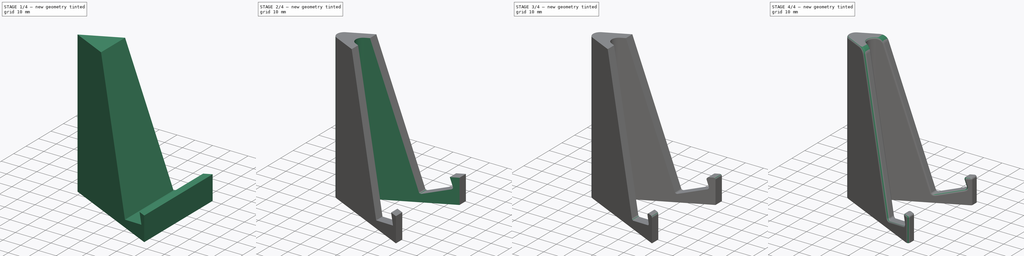
[diagram: build sequence overview — one tinted view per stage of 4, left to right]
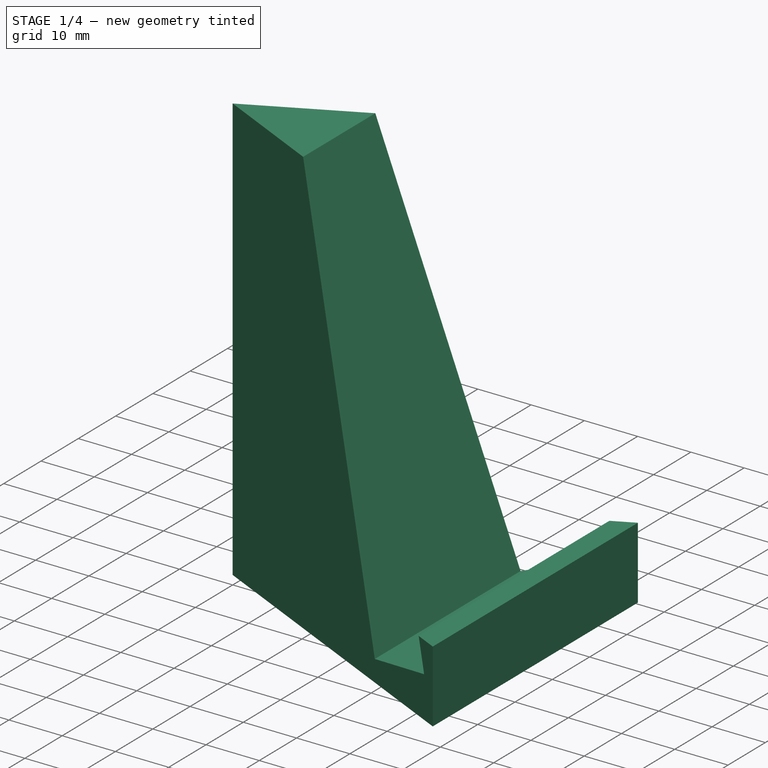
[diagram: stage 1 of 4 — iso view after this stage's code; geometry added in this stage tinted green]
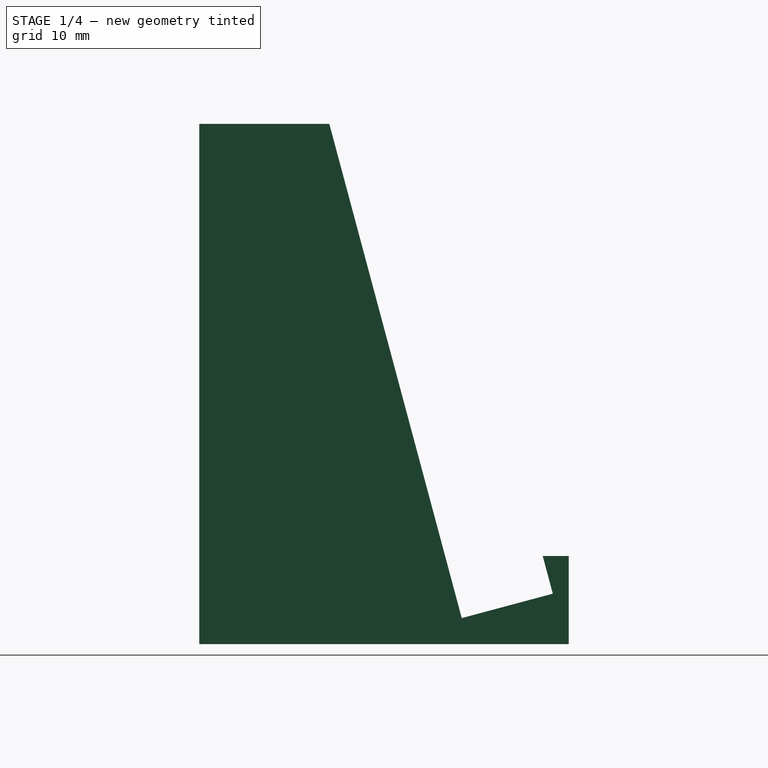
[diagram: stage 1 of 4 — front view after this stage's code; geometry added in this stage tinted green]
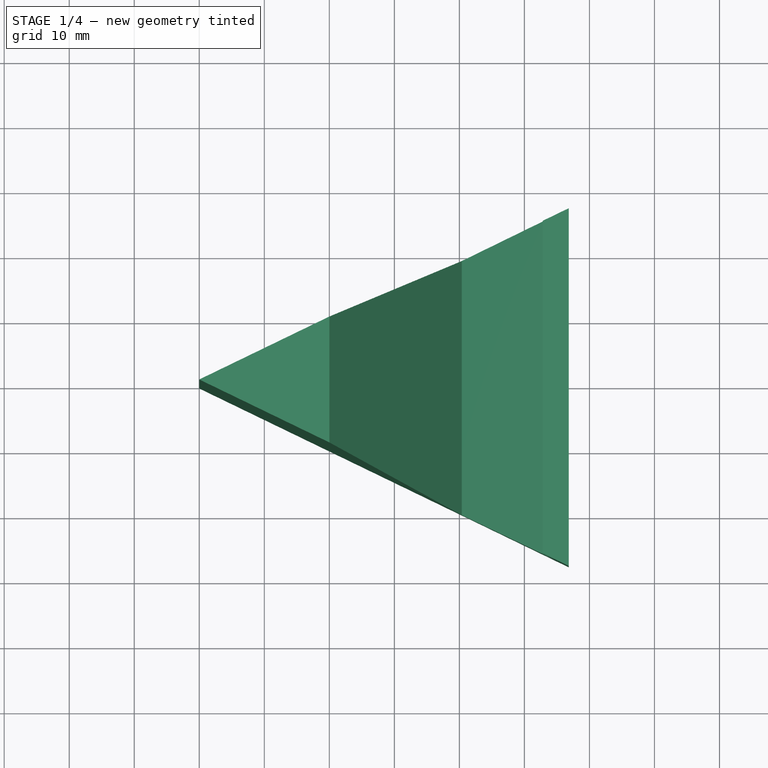
[diagram: stage 1 of 4 — top view after this stage's code; geometry added in this stage tinted green]
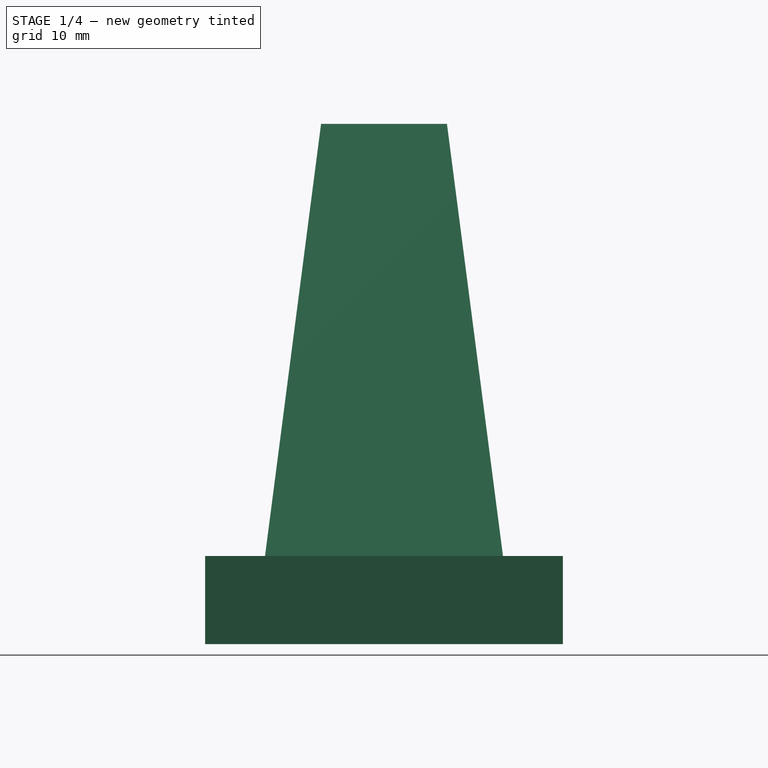
[diagram: stage 1 of 4 — right view after this stage's code; geometry added in this stage tinted green]
FCSTD DOCUMENT  (FreeCAD 0.19R)
Label: pocket265_stand
License: All rights reserved
LicenseURL: http://en.wikipedia.org/wiki/All_rights_reserved
objects: PartDesign::Fillet×7, Sketcher::SketchObject×3, PartDesign::Pocket×2, PartDesign::Pad×1, PartDesign::Mirrored×1, PartDesign::Body×1
note: 25 computed .brp shape members not serialized (recipe doc carries the construction recipe); baked Part::Feature solids carry a one-line shape summary decoded from their .brp

FEATURE [Sketcher::SketchObject] Sketch
  FullyConstrained = true
  MapMode = 5
  Placement = pos=(0,0,0) rot=(1,0,0;1.5708rad)
  Support = -> [XZ_Plane]
  sketch-geometry (8):
    g0: LineSegment StartX=36.8171 StartY=0 StartZ=0 EndX=-20 EndY=0 EndZ=0
    g1: LineSegment StartX=-20 StartY=0 StartZ=0 EndX=-20 EndY=80 EndZ=0
    g2: LineSegment StartX=-20 StartY=80 StartZ=0 EndX=0 EndY=80 EndZ=0
    g3: LineSegment StartX=0 StartY=80 StartZ=0 EndX=20.3641 EndY=4 EndZ=0
    g4: LineSegment StartX=36.8171 StartY=13.5484 StartZ=0 EndX=36.8171 EndY=0 EndZ=0
    g5: LineSegment StartX=20.3641 StartY=4 StartZ=0 EndX=34.3701 EndY=7.75288 EndZ=0
    g6: LineSegment StartX=34.3701 StartY=7.75288 StartZ=0 EndX=32.8171 EndY=13.5484 EndZ=0
    g7: LineSegment StartX=32.8171 StartY=13.5484 StartZ=0 EndX=36.8171 EndY=13.5484 EndZ=0
  constraints (24):
    c: PointOnObject(g0,g-1)
    c: PointOnObject(g0,g-1)
    c: Coincident(g0,g1)
    c: Vertical(g1)
    c: Coincident(g1,g2)
    c: Horizontal(g2)
    c: Coincident(g2,g3)
    c: Coincident(g4,g0)
    c: Vertical(g4)
    c: PointOnObject(g2,g-2)
    c: Coincident(g3,g5)
    c: Coincident(g5,g6)
    c: Coincident(g6,g7)
    c: Horizontal(g7)
    c: Coincident(g4,g7)
    c: Perpendicular(g5,g3)
    c: Perpendicular(g5,g6)
    c: Distance(g6) = 6
    c: Distance(g5) = 14.5
    c: DistanceX(g6,g4) = 4
    c: DistanceY(g-1,g3) = 4
    c: DistanceX(g2,g2) = 20
    c: Angle(g-2,g3) = 0.261799
    c: DistanceY(g1,g1) = 80
FEATURE [PartDesign::Pad] Pad
  Direction = (1,1,1)
  Length = 55
  Length2 = 100
  Midplane = true
  Placement = pos=(0,0,0) rot=(1,0,0;1.5708rad)
  Profile = -> Sketch
  Type = 0
FEATURE [Sketcher::SketchObject] Sketch001
  ExternalGeometry = -> [Pad]
  FullyConstrained = false
  MapMode = 5
  Placement = pos=(0,0,0) rot=(1,0,0;3.14159rad)
  Support = -> [Pad]
  sketch-geometry (5):
    g0: LineSegment StartX=36.8171 StartY=27.5 StartZ=0 EndX=-20 EndY=0 EndZ=0
    g1: LineSegment StartX=36.8171 StartY=27.5 StartZ=0 EndX=42.3292 EndY=41.2553 EndZ=0
    g2: LineSegment StartX=42.3292 StartY=41.2553 StartZ=0 EndX=-38.6715 EndY=41.2553 EndZ=0
    g3: LineSegment StartX=-38.6715 StartY=41.2553 StartZ=0 EndX=-33.5333 EndY=5.42531 EndZ=0
    g4: LineSegment StartX=-33.5333 StartY=5.42531 StartZ=0 EndX=-20 EndY=0 EndZ=0
  constraints (9):
    c: Coincident(g0,g-3)
    c: PointOnObject(g0,g-1)
    c: PointOnObject(g0,g-4)
    c: Coincident(g0,g1)
    c: Coincident(g1,g2)
    c: Horizontal(g2)
    c: Coincident(g2,g3)
    c: Coincident(g3,g4)
    c: Coincident(g4,g0)
FEATURE [PartDesign::Pocket] Pocket
  BaseFeature = -> Pad
  Length = 5
  Length2 = 100
  Placement = pos=(0,0,0) rot=(1,0,0;1.5708rad)
  Profile = -> Sketch001
  Type = 1
FEATURE [PartDesign::Mirrored] Mirrored
  BaseFeature = -> Pocket
  MirrorPlane = -> Sketch001 [H_Axis]
  Originals = -> [Pocket]
  Placement = pos=(0,0,0) rot=(1,0,0;1.5708rad)
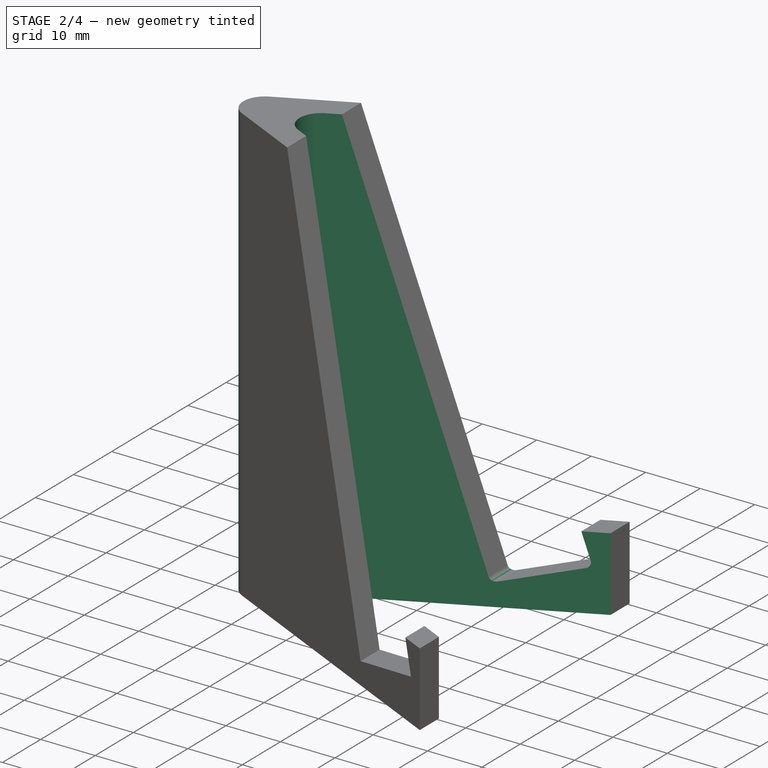
[diagram: stage 2 of 4 — iso view after this stage's code; geometry added in this stage tinted green]
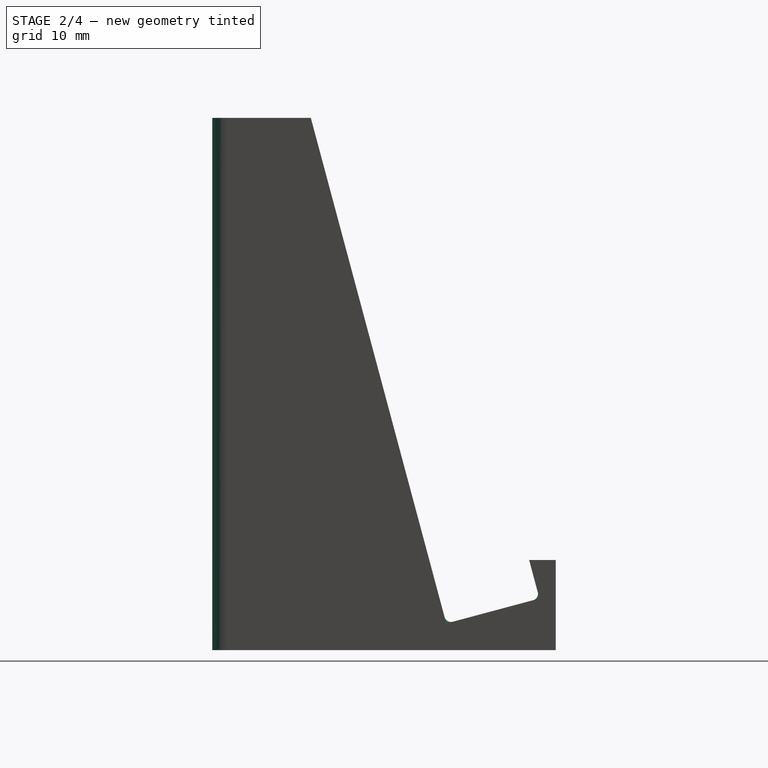
[diagram: stage 2 of 4 — front view after this stage's code; geometry added in this stage tinted green]
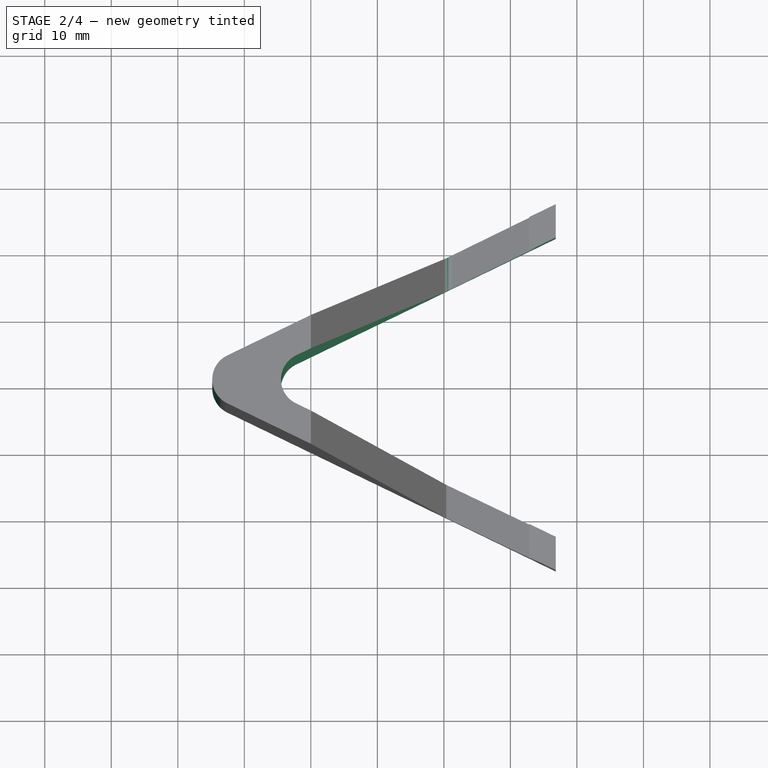
[diagram: stage 2 of 4 — top view after this stage's code; geometry added in this stage tinted green]
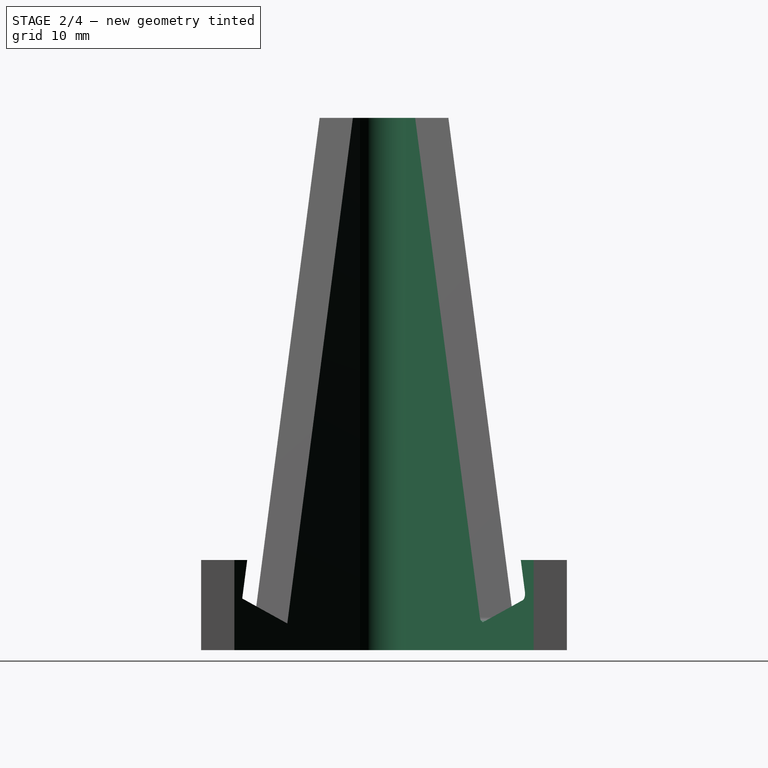
[diagram: stage 2 of 4 — right view after this stage's code; geometry added in this stage tinted green]
FEATURE [Sketcher::SketchObject] Sketch002
  ExternalGeometry = -> [Mirrored]
  FullyConstrained = true
  MapMode = 5
  Placement = pos=(0,0,0) rot=(1,0,0;3.14159rad)
  Support = -> [Mirrored]
  sketch-geometry (3):
    g0: LineSegment StartX=36.8171 StartY=22.5 StartZ=0 EndX=-9.66961 EndY=0 EndZ=0
    g1: LineSegment StartX=-9.66961 StartY=0 StartZ=0 EndX=36.8171 EndY=-22.5 EndZ=0
    g2: LineSegment StartX=36.8171 StartY=-22.5 StartZ=0 EndX=36.8171 EndY=22.5 EndZ=0
  constraints (8):
    c: PointOnObject(g0,g-3)
    c: PointOnObject(g0,g-1)
    c: Coincident(g0,g1)
    c: Coincident(g1,g2)
    c: Coincident(g2,g0)
    c: Symmetric(g0,g1,g-1)
    c: Parallel(g0,g-4)
    c: DistanceY(g0,g-4) = 5
FEATURE [PartDesign::Pocket] Pocket001
  BaseFeature = -> Mirrored
  Length = 5
  Length2 = 100
  Placement = pos=(0,0,0) rot=(1,0,0;1.5708rad)
  Profile = -> Sketch002
  Type = 1
FEATURE [PartDesign::Fillet] Fillet
  Base = -> Pocket001 [Edge22,Edge8]
  BaseFeature = -> Pocket001
  Placement = pos=(0,0,0) rot=(1,0,0;1.5708rad)
  Radius = 4
  SupportTransform = false
FEATURE [PartDesign::Fillet] Fillet001
  Base = -> Fillet [Edge44,Edge45]
  BaseFeature = -> Fillet
  Placement = pos=(0,0,0) rot=(1,0,0;1.5708rad)
  Radius = 1
  SupportTransform = false
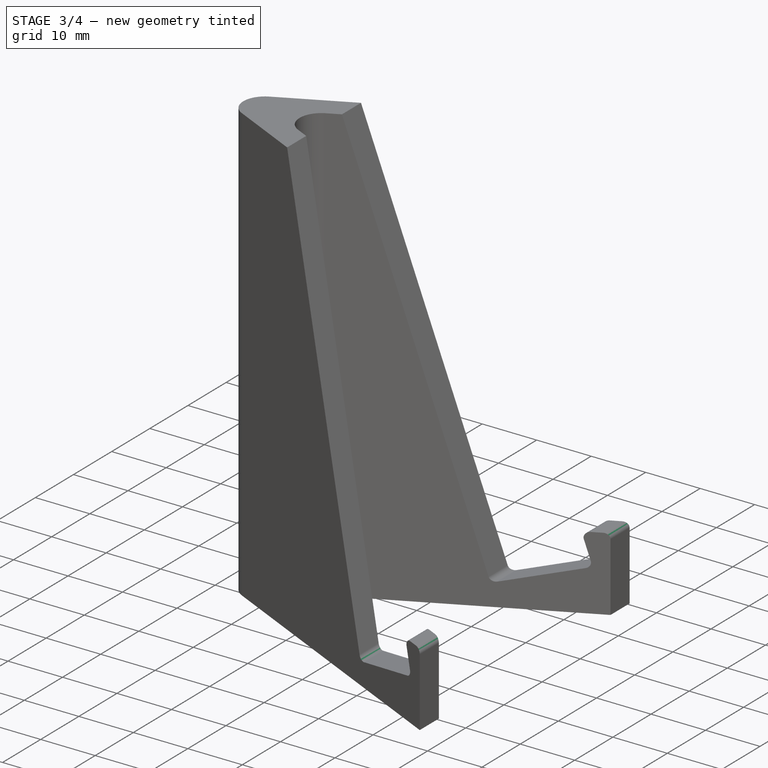
[diagram: stage 3 of 4 — iso view after this stage's code; geometry added in this stage tinted green]
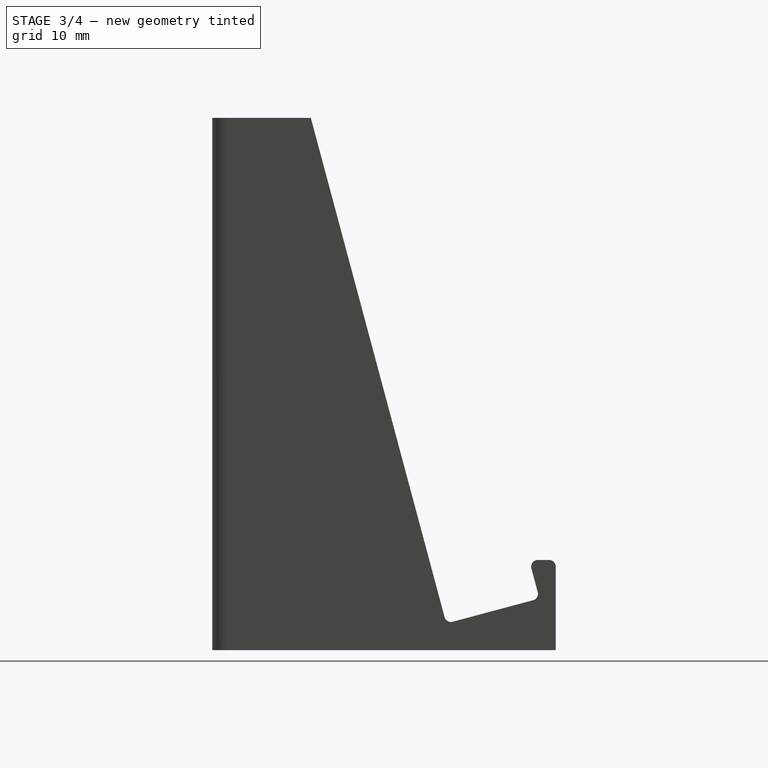
[diagram: stage 3 of 4 — front view after this stage's code; geometry added in this stage tinted green]
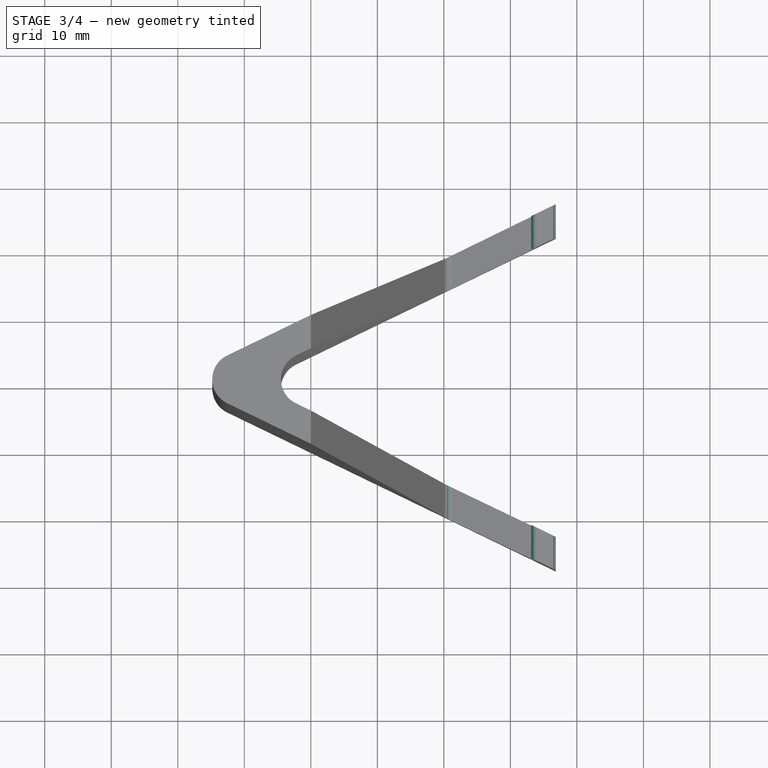
[diagram: stage 3 of 4 — top view after this stage's code; geometry added in this stage tinted green]
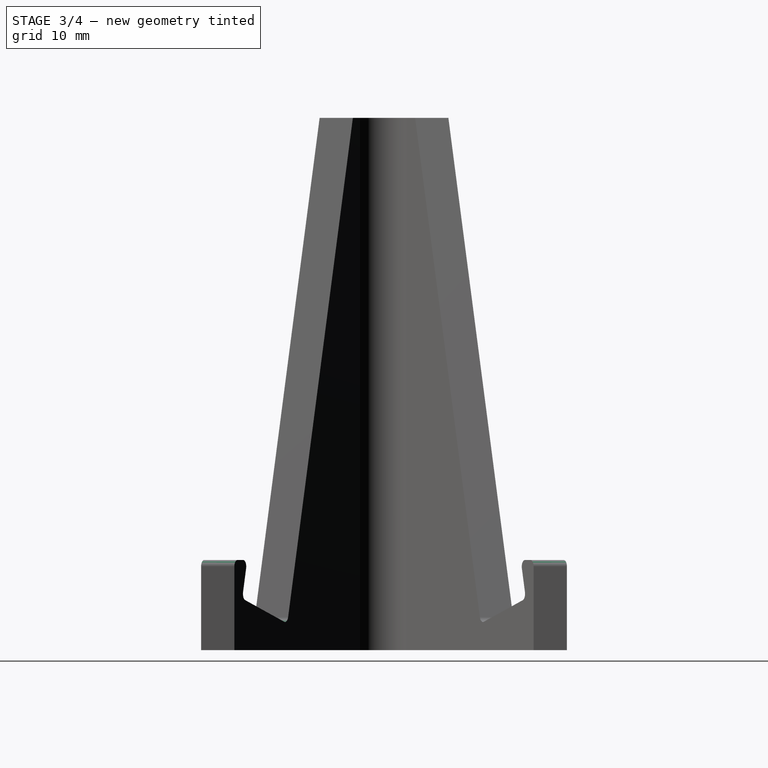
[diagram: stage 3 of 4 — right view after this stage's code; geometry added in this stage tinted green]
FEATURE [PartDesign::Fillet] Fillet002
  Base = -> Fillet001 [Edge46,Edge54]
  BaseFeature = -> Fillet001
  Placement = pos=(0,0,0) rot=(1,0,0;1.5708rad)
  Radius = 1
  SupportTransform = false
FEATURE [PartDesign::Fillet] Fillet003
  Base = -> Fillet002 [Edge35,Edge60,Edge56,Edge37]
  BaseFeature = -> Fillet002
  Placement = pos=(0,0,0) rot=(1,0,0;1.5708rad)
  Radius = 1
  SupportTransform = false
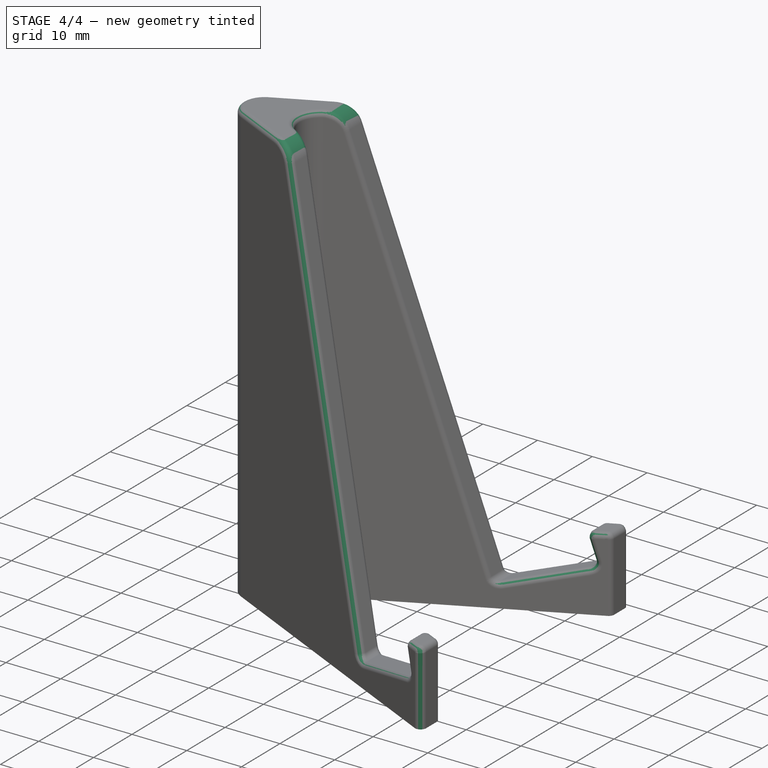
[diagram: stage 4 of 4 — iso view after this stage's code; geometry added in this stage tinted green]
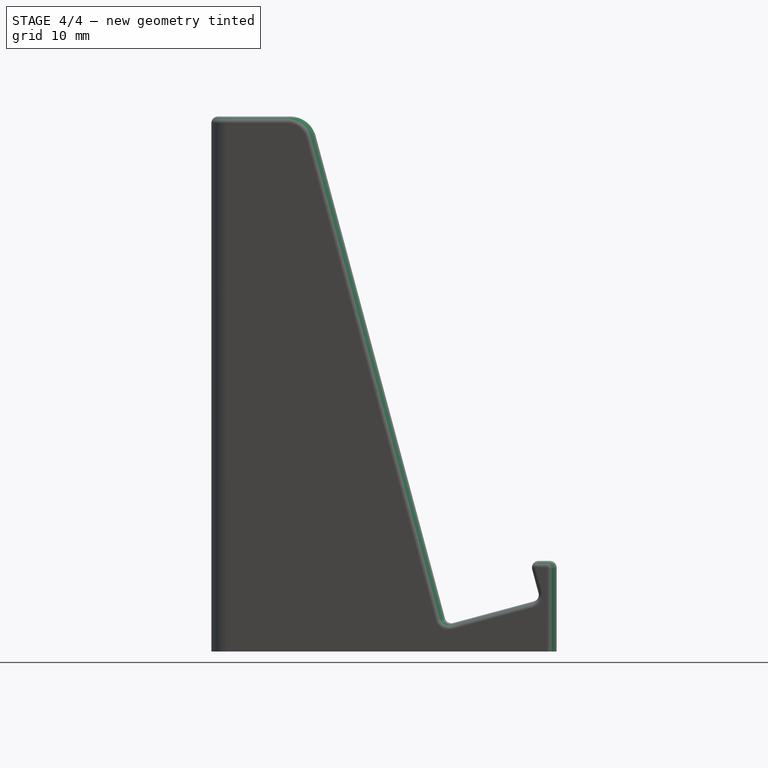
[diagram: stage 4 of 4 — front view after this stage's code; geometry added in this stage tinted green]
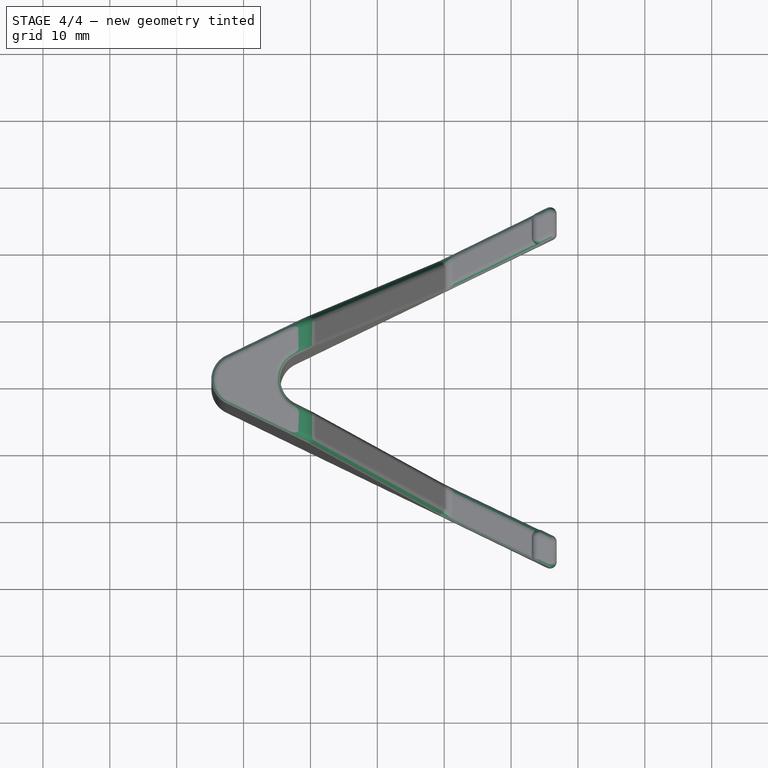
[diagram: stage 4 of 4 — top view after this stage's code; geometry added in this stage tinted green]
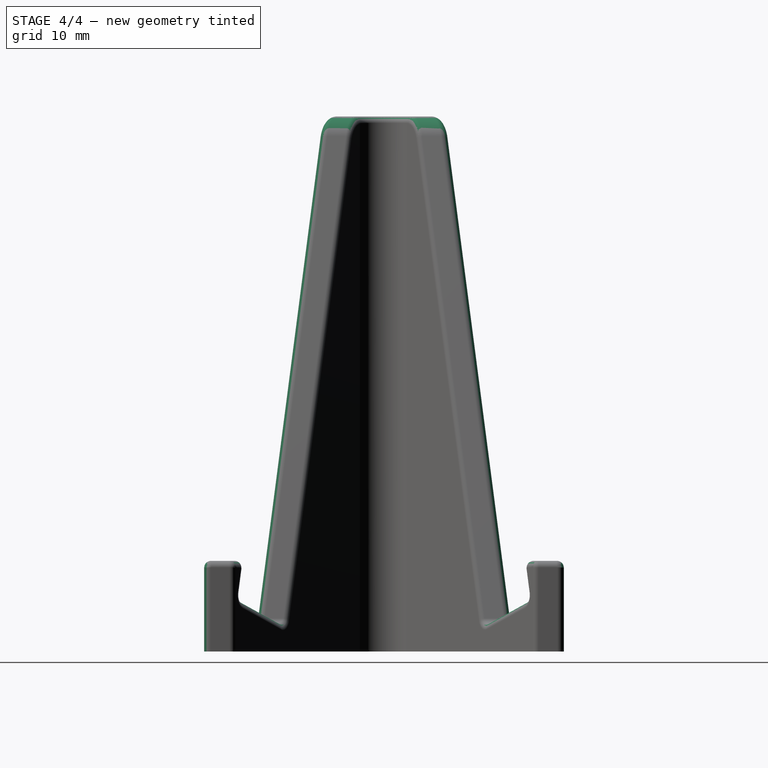
[diagram: stage 4 of 4 — right view after this stage's code; geometry added in this stage tinted green]
FEATURE [PartDesign::Fillet] Fillet004
  Base = -> Fillet003 [Edge40,Edge31]
  BaseFeature = -> Fillet003
  Placement = pos=(0,0,0) rot=(1,0,0;1.5708rad)
  Radius = 4
  SupportTransform = false
FEATURE [PartDesign::Fillet] Fillet005
  Base = -> Fillet004 [Edge24,Edge2,Edge51]
  BaseFeature = -> Fillet004
  Placement = pos=(0,0,0) rot=(1,0,0;1.5708rad)
  Radius = 1
  SupportTransform = false
FEATURE [PartDesign::Fillet] Fillet006
  Base = -> Fillet005 [Edge74]
  BaseFeature = -> Fillet005
  Placement = pos=(0,0,0) rot=(1,0,0;1.5708rad)
  Radius = 1
  SupportTransform = false
FEATURE [PartDesign::Body] Body
  Group = -> [Sketch,Pad,Sketch001,Pocket,Mirrored,Sketch002,Pocket001,Fillet,Fillet001,Fillet002,Fillet003,Fillet004,Fillet005,Fillet006]
  Origin = -> Origin
  Tip = -> Fillet006
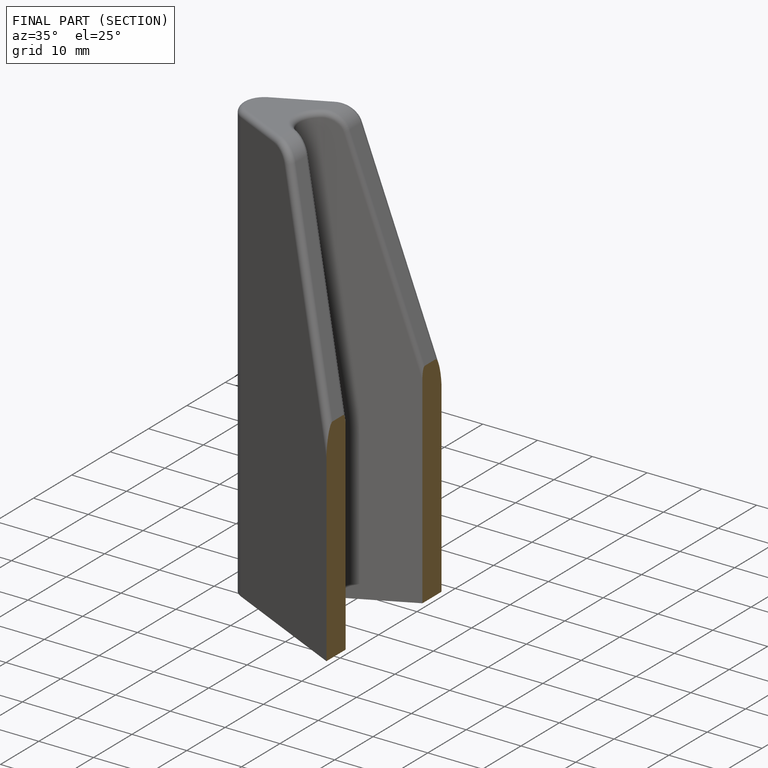
[diagram: finished part — half-section view (interior)]
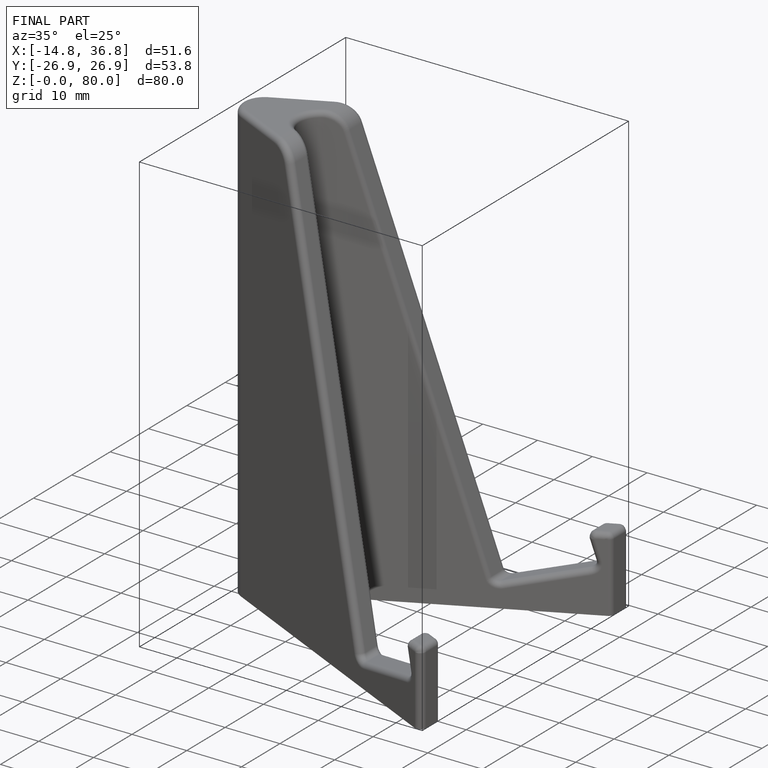
[diagram: finished part — iso view with bounding-box wireframe]
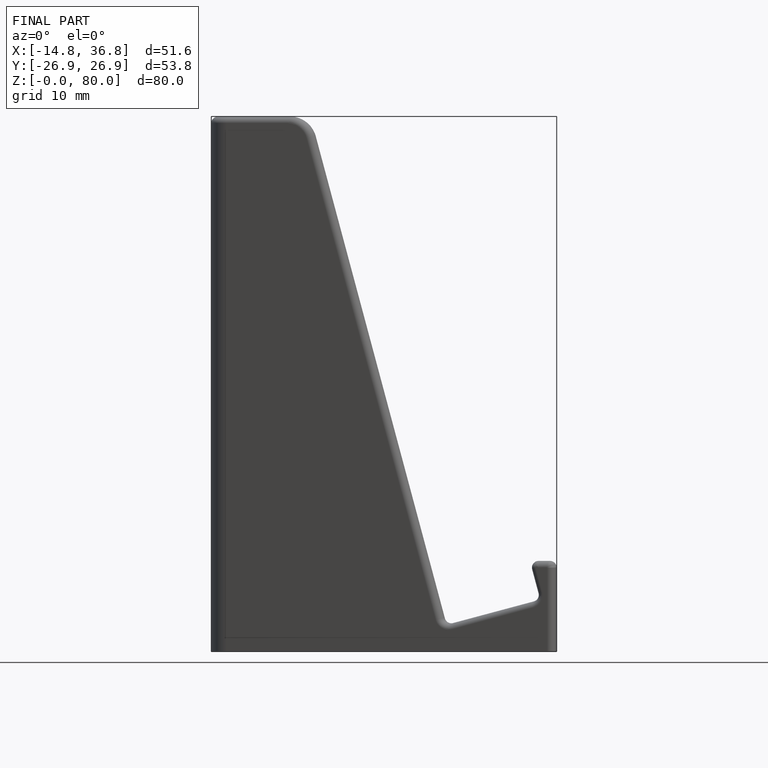
[diagram: finished part — front view with bounding-box wireframe]
